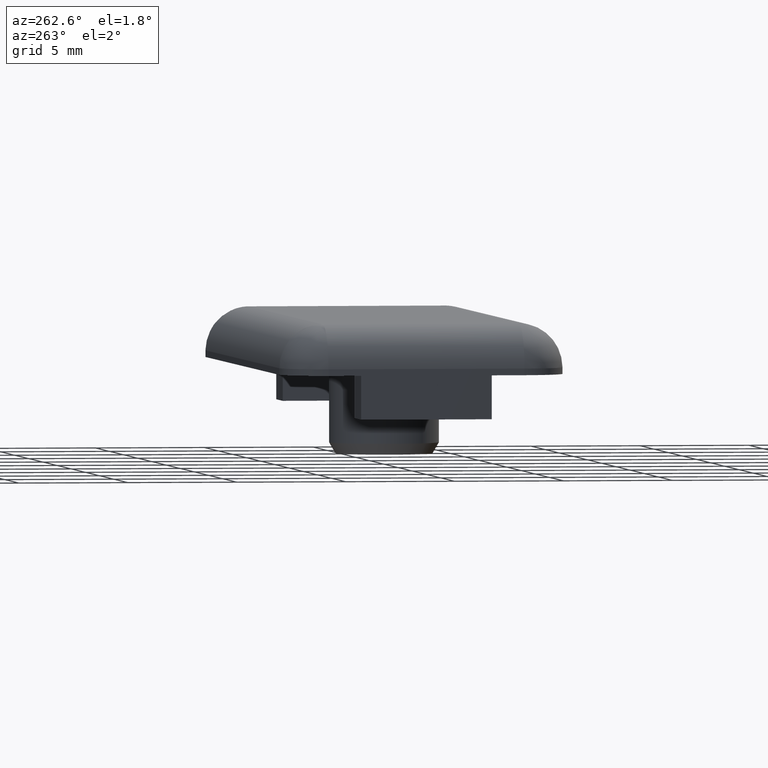
[diagram: clean part render]
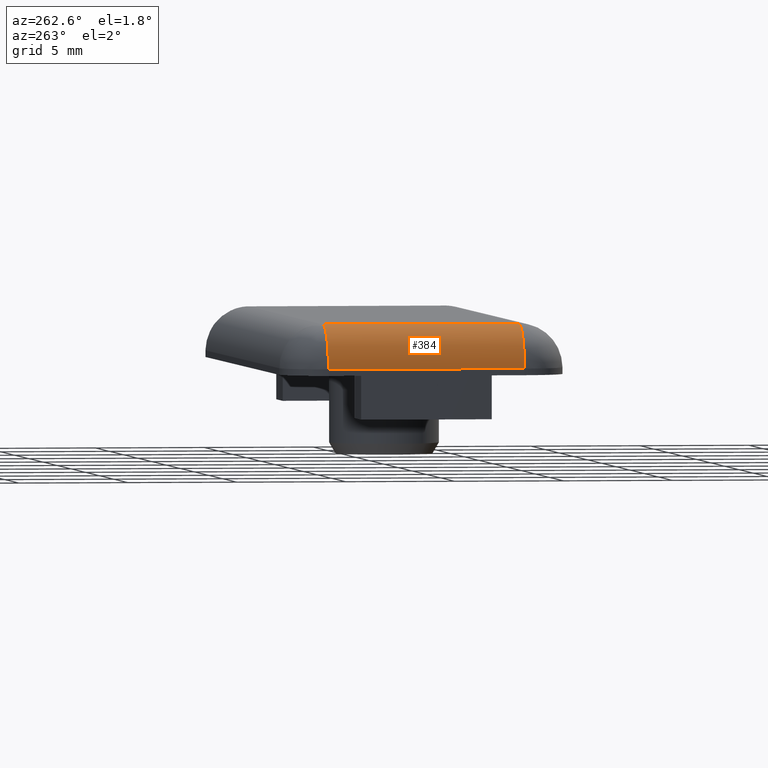
[diagram: same view with one face highlighted and labeled with its STEP entity id]
A machine part, auxiliary view. The second image highlights one B-rep face of the part: STEP entity #384.
In plain terms, the highlighted cylindrical surface (partial cylindrical patch) has radius 2 mm, axis along (0, 1, 0).
Its self-contained STEP definition (entity closure, byte-faithful):
#7=CARTESIAN_POINT('',(-12.999999999999879,-4.500000000000000,2.300000000000000));
#8=VERTEX_POINT('',#7);
#25=CARTESIAN_POINT('',(-12.999999999999879,4.500000000000000,2.300000000000000));
#26=VERTEX_POINT('',#25);
#33=CARTESIAN_POINT('',(-12.999999999999879,4.500000000000000,2.300000000000000));
#34=DIRECTION('',(0.0,-1.0,0.0));
#35=VECTOR('',#34,9.0);
#36=LINE('',#33,#35);
#37=EDGE_CURVE('',#26,#8,#36,.T.);
#233=CARTESIAN_POINT('',(-14.999999999999879,4.500000000000000,0.300000000000000));
#234=VERTEX_POINT('',#233);
#265=CARTESIAN_POINT('',(-14.999999999999879,-4.500000000000000,0.300000000000000));
#266=VERTEX_POINT('',#265);
#356=CARTESIAN_POINT('',(-12.999999999999879,6.500000000000000,0.300000000000000));
#357=DIRECTION('',(0.0,1.0,0.0));
#358=DIRECTION('',(-1.0,0.0,5.551115E-017));
#359=AXIS2_PLACEMENT_3D('',#356,#357,#358);
#360=CYLINDRICAL_SURFACE('',#359,2.0);
#361=CARTESIAN_POINT('',(-12.999999999999879,4.500000000000000,0.300000000000000));
#362=DIRECTION('',(0.0,-1.0,0.0));
#363=DIRECTION('',(-1.0,0.0,5.551115E-017));
#364=AXIS2_PLACEMENT_3D('',#361,#362,#363);
#365=CIRCLE('',#364,2.0);
#366=EDGE_CURVE('',#26,#234,#365,.T.);
#367=ORIENTED_EDGE('',*,*,#366,.T.);
#368=CARTESIAN_POINT('',(-14.999999999999879,4.500000000000000,0.300000000000000));
#369=DIRECTION('',(0.0,-1.0,0.0));
#370=VECTOR('',#369,9.0);
#371=LINE('',#368,#370);
#372=EDGE_CURVE('',#234,#266,#371,.T.);
#373=ORIENTED_EDGE('',*,*,#372,.T.);
#374=CARTESIAN_POINT('',(-12.999999999999879,-4.500000000000000,0.300000000000000));
#375=DIRECTION('',(0.0,-1.0,0.0));
#376=DIRECTION('',(-1.0,0.0,5.551115E-017));
#377=AXIS2_PLACEMENT_3D('',#374,#375,#376);
#378=CIRCLE('',#377,2.0);
#379=EDGE_CURVE('',#8,#266,#378,.T.);
#380=ORIENTED_EDGE('',*,*,#379,.F.);
#381=ORIENTED_EDGE('',*,*,#37,.F.);
#382=EDGE_LOOP('',(#367,#373,#380,#381));
#383=FACE_OUTER_BOUND('',#382,.T.);
#384=ADVANCED_FACE('',(#383),#360,.T.);